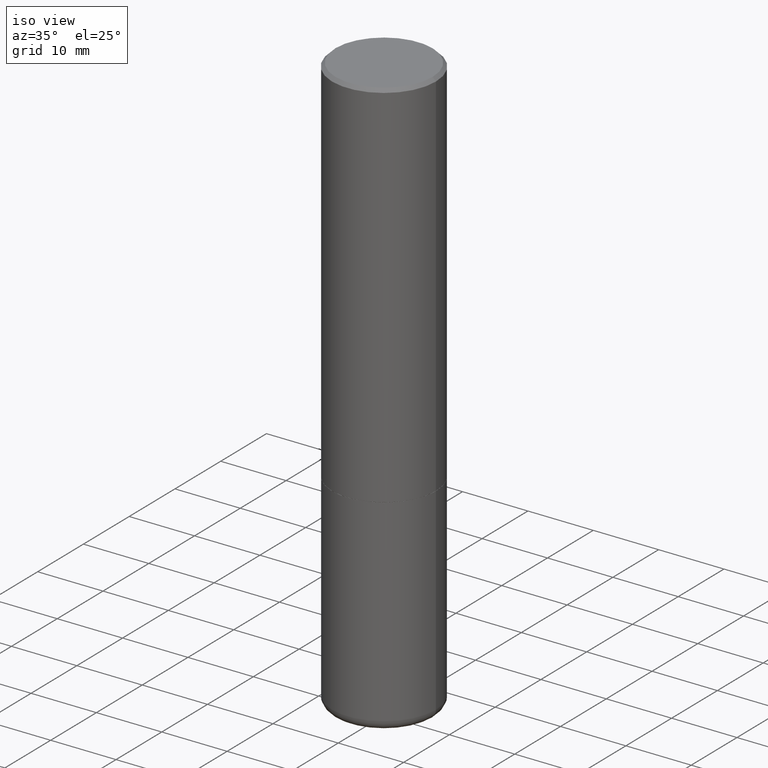
[diagram: clean part render]
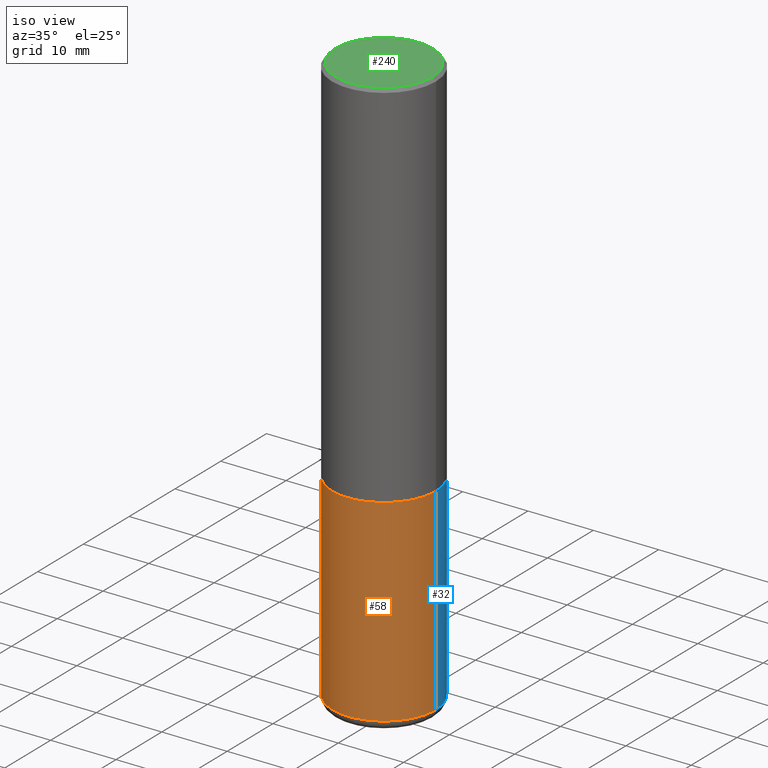
[diagram: same view with three faces highlighted in distinct colors, each labeled with its STEP entity id]
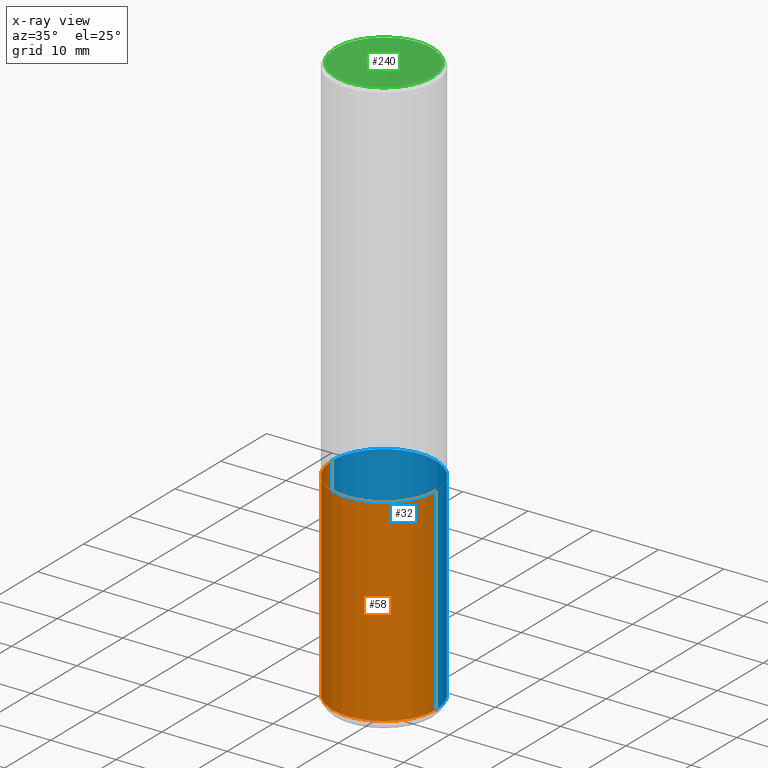
[diagram: x-ray of the same camera — body ghosted, the three highlighted faces saturated]
A machine part, iso view with three faces highlighted in distinct colors.
The next image is the same camera in x-ray (body ghosted, the three faces saturated) — at least one of them is partly hidden behind the body in this view.
Their STEP definitions:

[orange] entity #58 — the highlighted cylindrical surface (partial cylindrical patch) has radius 7.9375 mm, axis along (-0, 0, 1).
#44 = CIRCLE ( 'NONE', #52, 0.3125000000000000000 ) ;
#45 = CYLINDRICAL_SURFACE ( 'NONE', #402, 0.3125000000000000000 ) ;
#46 = FACE_OUTER_BOUND ( 'NONE', #286, .T. ) ;
#47 = CARTESIAN_POINT ( 'NONE',  ( 0.000000000000000000, 0.000000000000000000, 0.000000000000000000 ) ) ;
#52 = AXIS2_PLACEMENT_3D ( 'NONE', #201, #372, #401 ) ;
#58 = ADVANCED_FACE ( 'NONE', ( #46 ), #45, .T. ) ;
#68 = LINE ( 'NONE', #100, #373 ) ;
#70 = DIRECTION ( 'NONE',  ( -2.445468806185136597E-29, 3.491481338843145583E-15, 1.000000000000000000 ) ) ;
#91 = ORIENTED_EDGE ( 'NONE', *, *, #141, .F. ) ;
#100 = CARTESIAN_POINT ( 'NONE',  ( 0.3125000000000000000, -2.182175836776958347E-15, 1.523805242436230075E-29 ) ) ;
#114 = VERTEX_POINT ( 'NONE', #271 ) ;
#140 = AXIS2_PLACEMENT_3D ( 'NONE', #164, #70, #398 ) ;
#141 = EDGE_CURVE ( 'NONE', #199, #416, #44, .T. ) ;
#150 = VERTEX_POINT ( 'NONE', #198 ) ;
#164 = CARTESIAN_POINT ( 'NONE',  ( 8.412412693276869938E-29, -1.201069580562042103E-14, -3.439999999999999947 ) ) ;
#175 = VECTOR ( 'NONE', #386, 39.37007874015748143 ) ;
#198 = CARTESIAN_POINT ( 'NONE',  ( 0.3125000000000000000, -1.419287164239737937E-14, -3.439999999999999947 ) ) ;
#199 = VERTEX_POINT ( 'NONE', #394 ) ;
#201 = CARTESIAN_POINT ( 'NONE',  ( 5.502304813916556222E-29, -7.855833012397076871E-15, -2.249999999999999556 ) ) ;
#221 = EDGE_CURVE ( 'NONE', #114, #199, #329, .T. ) ;
#233 = DIRECTION ( 'NONE',  ( -2.445468806185136597E-29, 3.491481338843145583E-15, 1.000000000000000000 ) ) ;
#246 = ORIENTED_EDGE ( 'NONE', *, *, #249, .T. ) ;
#249 = EDGE_CURVE ( 'NONE', #114, #150, #403, .T. ) ;
#258 = CARTESIAN_POINT ( 'NONE',  ( -0.3125000000000000000, 2.220446049250313081E-15, -1.537167215704658232E-29 ) ) ;
#271 = CARTESIAN_POINT ( 'NONE',  ( -0.3125000000000000000, -9.790249756370107944E-15, -3.439999999999999947 ) ) ;
#286 = EDGE_LOOP ( 'NONE', ( #344, #246, #366, #91 ) ) ;
#303 = DIRECTION ( 'NONE',  ( 1.000000000000000000, -6.982962677686266711E-15, 4.876176775795936353E-29 ) ) ;
#318 = EDGE_CURVE ( 'NONE', #150, #416, #68, .T. ) ;
#329 = LINE ( 'NONE', #258, #175 ) ;
#337 = CARTESIAN_POINT ( 'NONE',  ( 0.3125000000000000000, -1.003800884917403522E-14, -2.249999999999999556 ) ) ;
#344 = ORIENTED_EDGE ( 'NONE', *, *, #221, .F. ) ;
#366 = ORIENTED_EDGE ( 'NONE', *, *, #318, .T. ) ;
#368 = DIRECTION ( 'NONE',  ( -2.445468806185136877E-29, 3.491481338843145188E-15, 1.000000000000000000 ) ) ;
#372 = DIRECTION ( 'NONE',  ( -2.445468806185136597E-29, 3.491481338843145583E-15, 1.000000000000000000 ) ) ;
#373 = VECTOR ( 'NONE', #368, 39.37007874015748143 ) ;
#386 = DIRECTION ( 'NONE',  ( -2.445468806185136877E-29, 3.491481338843145188E-15, 1.000000000000000000 ) ) ;
#394 = CARTESIAN_POINT ( 'NONE',  ( -0.3125000000000000000, -7.712818359758435078E-15, -2.249999999999999556 ) ) ;
#398 = DIRECTION ( 'NONE',  ( 1.000000000000000000, -6.982962677686269077E-15, 0.000000000000000000 ) ) ;
#401 = DIRECTION ( 'NONE',  ( 1.000000000000000000, -6.982962677686269077E-15, 0.000000000000000000 ) ) ;
#402 = AXIS2_PLACEMENT_3D ( 'NONE', #47, #233, #303 ) ;
#403 = CIRCLE ( 'NONE', #140, 0.3125000000000000000 ) ;
#416 = VERTEX_POINT ( 'NONE', #337 ) ;

[blue] entity #32 — the highlighted cylindrical surface (partial cylindrical patch) has radius 7.9375 mm, axis along (-0, 0, 1).
#10 = DIRECTION ( 'NONE',  ( 1.000000000000000000, -6.982962677686266711E-15, 4.876176775795936353E-29 ) ) ;
#32 = ADVANCED_FACE ( 'NONE', ( #60 ), #363, .T. ) ;
#37 = ORIENTED_EDGE ( 'NONE', *, *, #221, .T. ) ;
#39 = CARTESIAN_POINT ( 'NONE',  ( 0.000000000000000000, 0.000000000000000000, 0.000000000000000000 ) ) ;
#48 = DIRECTION ( 'NONE',  ( 1.000000000000000000, -6.982962677686269077E-15, 0.000000000000000000 ) ) ;
#51 = ORIENTED_EDGE ( 'NONE', *, *, #397, .T. ) ;
#60 = FACE_OUTER_BOUND ( 'NONE', #165, .T. ) ;
#68 = LINE ( 'NONE', #100, #373 ) ;
#100 = CARTESIAN_POINT ( 'NONE',  ( 0.3125000000000000000, -2.182175836776958347E-15, 1.523805242436230075E-29 ) ) ;
#102 = DIRECTION ( 'NONE',  ( -2.445468806185136597E-29, 3.491481338843145583E-15, 1.000000000000000000 ) ) ;
#114 = VERTEX_POINT ( 'NONE', #271 ) ;
#118 = AXIS2_PLACEMENT_3D ( 'NONE', #144, #102, #173 ) ;
#133 = ORIENTED_EDGE ( 'NONE', *, *, #351, .F. ) ;
#144 = CARTESIAN_POINT ( 'NONE',  ( 8.412412693276869938E-29, -1.201069580562042103E-14, -3.439999999999999947 ) ) ;
#150 = VERTEX_POINT ( 'NONE', #198 ) ;
#163 = DIRECTION ( 'NONE',  ( -2.445468806185136597E-29, 3.491481338843145583E-15, 1.000000000000000000 ) ) ;
#165 = EDGE_LOOP ( 'NONE', ( #51, #37, #133, #299 ) ) ;
#173 = DIRECTION ( 'NONE',  ( 1.000000000000000000, -6.982962677686269077E-15, 0.000000000000000000 ) ) ;
#175 = VECTOR ( 'NONE', #386, 39.37007874015748143 ) ;
#198 = CARTESIAN_POINT ( 'NONE',  ( 0.3125000000000000000, -1.419287164239737937E-14, -3.439999999999999947 ) ) ;
#199 = VERTEX_POINT ( 'NONE', #394 ) ;
#221 = EDGE_CURVE ( 'NONE', #114, #199, #329, .T. ) ;
#228 = CIRCLE ( 'NONE', #364, 0.3125000000000000000 ) ;
#237 = CIRCLE ( 'NONE', #118, 0.3125000000000000000 ) ;
#258 = CARTESIAN_POINT ( 'NONE',  ( -0.3125000000000000000, 2.220446049250313081E-15, -1.537167215704658232E-29 ) ) ;
#271 = CARTESIAN_POINT ( 'NONE',  ( -0.3125000000000000000, -9.790249756370107944E-15, -3.439999999999999947 ) ) ;
#278 = DIRECTION ( 'NONE',  ( -2.445468806185136597E-29, 3.491481338843145583E-15, 1.000000000000000000 ) ) ;
#299 = ORIENTED_EDGE ( 'NONE', *, *, #318, .F. ) ;
#316 = AXIS2_PLACEMENT_3D ( 'NONE', #39, #163, #10 ) ;
#318 = EDGE_CURVE ( 'NONE', #150, #416, #68, .T. ) ;
#329 = LINE ( 'NONE', #258, #175 ) ;
#337 = CARTESIAN_POINT ( 'NONE',  ( 0.3125000000000000000, -1.003800884917403522E-14, -2.249999999999999556 ) ) ;
#339 = CARTESIAN_POINT ( 'NONE',  ( 5.502304813916556222E-29, -7.855833012397076871E-15, -2.249999999999999556 ) ) ;
#351 = EDGE_CURVE ( 'NONE', #416, #199, #228, .T. ) ;
#363 = CYLINDRICAL_SURFACE ( 'NONE', #316, 0.3125000000000000000 ) ;
#364 = AXIS2_PLACEMENT_3D ( 'NONE', #339, #278, #48 ) ;
#368 = DIRECTION ( 'NONE',  ( -2.445468806185136877E-29, 3.491481338843145188E-15, 1.000000000000000000 ) ) ;
#373 = VECTOR ( 'NONE', #368, 39.37007874015748143 ) ;
#386 = DIRECTION ( 'NONE',  ( -2.445468806185136877E-29, 3.491481338843145188E-15, 1.000000000000000000 ) ) ;
#394 = CARTESIAN_POINT ( 'NONE',  ( -0.3125000000000000000, -7.712818359758435078E-15, -2.249999999999999556 ) ) ;
#397 = EDGE_CURVE ( 'NONE', #150, #114, #237, .T. ) ;
#416 = VERTEX_POINT ( 'NONE', #337 ) ;

[green] entity #240 — the highlighted planar face has unit normal (0, -0, -1).
#3 = ORIENTED_EDGE ( 'NONE', *, *, #335, .T. ) ;
#9 = CARTESIAN_POINT ( 'NONE',  ( -3.862250233040313002E-45, 5.514269730407654285E-31, 1.579349621337152204E-16 ) ) ;
#13 = VERTEX_POINT ( 'NONE', #121 ) ;
#23 = CARTESIAN_POINT ( 'NONE',  ( -3.862250233040313002E-45, 5.514269730407654285E-31, 1.579349621337152204E-16 ) ) ;
#36 = AXIS2_PLACEMENT_3D ( 'NONE', #9, #93, #292 ) ;
#75 = DIRECTION ( 'NONE',  ( 1.000000000000000000, -6.982962677686265133E-15, 4.873475059489881261E-29 ) ) ;
#82 = AXIS2_PLACEMENT_3D ( 'NONE', #218, #268, #322 ) ;
#93 = DIRECTION ( 'NONE',  ( -2.445468806185136597E-29, 3.491481338843145583E-15, 1.000000000000000000 ) ) ;
#112 = CIRCLE ( 'NONE', #352, 0.2924999999999997047 ) ;
#121 = CARTESIAN_POINT ( 'NONE',  ( -0.2924999999999997047, 2.077431396611662611E-15, 1.579349621337007990E-16 ) ) ;
#194 = CIRCLE ( 'NONE', #36, 0.2924999999999997047 ) ;
#218 = CARTESIAN_POINT ( 'NONE',  ( 2.042516583223230567E-15, 0.2924999999999997047, -9.422908105447613343E-16 ) ) ;
#222 = FACE_OUTER_BOUND ( 'NONE', #414, .T. ) ;
#231 = EDGE_CURVE ( 'NONE', #13, #324, #194, .T. ) ;
#234 = DIRECTION ( 'NONE',  ( -2.445468806185136597E-29, 3.491481338843145583E-15, 1.000000000000000000 ) ) ;
#240 = ADVANCED_FACE ( 'NONE', ( #222 ), #320, .F. ) ;
#268 = DIRECTION ( 'NONE',  ( 2.438088387897960049E-29, -3.491481338843145188E-15, -1.000000000000000000 ) ) ;
#292 = DIRECTION ( 'NONE',  ( 1.000000000000000000, -6.982962677686265133E-15, 4.873475059489881261E-29 ) ) ;
#310 = CARTESIAN_POINT ( 'NONE',  ( 0.2924999999999997047, -2.110215457714317959E-15, 1.579349621337297404E-16 ) ) ;
#314 = ORIENTED_EDGE ( 'NONE', *, *, #231, .T. ) ;
#320 = PLANE ( 'NONE',  #82 ) ;
#322 = DIRECTION ( 'NONE',  ( -1.000000000000000000, 6.982962677686265922E-15, -4.876176775795935793E-29 ) ) ;
#324 = VERTEX_POINT ( 'NONE', #310 ) ;
#335 = EDGE_CURVE ( 'NONE', #324, #13, #112, .T. ) ;
#352 = AXIS2_PLACEMENT_3D ( 'NONE', #23, #234, #75 ) ;
#414 = EDGE_LOOP ( 'NONE', ( #314, #3 ) ) ;